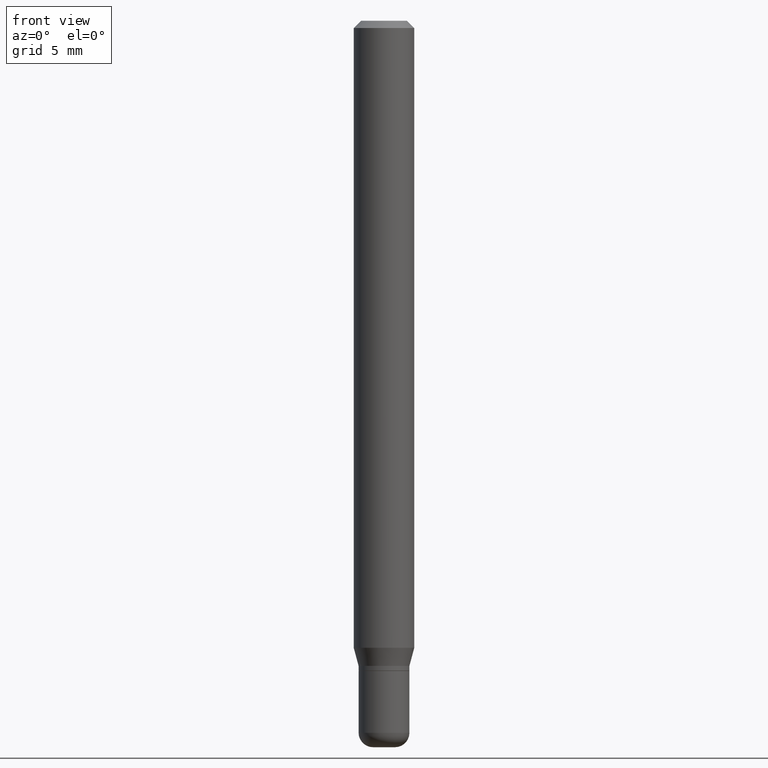
[diagram: clean part render]
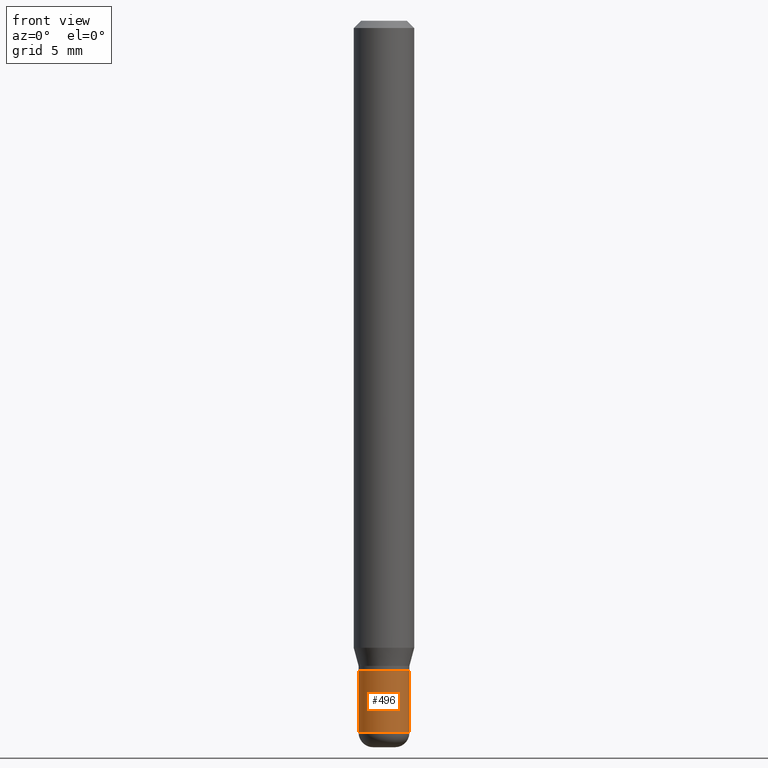
[diagram: same view with one face highlighted and labeled with its STEP entity id]
A machine part, front view. The second image highlights one B-rep face of the part: STEP entity #496.
In plain terms, the highlighted cylindrical surface (edge-blend (fillet) strip) has radius 1.3335 mm, axis along (-0, 0, 1).
Its self-contained STEP definition (entity closure, byte-faithful):
#16 = ORIENTED_EDGE ( 'NONE', *, *, #368, .T. ) ;
#35 = CARTESIAN_POINT ( 'NONE',  ( -0.05249999999999999806, -4.536860696474120707E-15, -1.342500000000000249 ) ) ;
#37 = CARTESIAN_POINT ( 'NONE',  ( -0.05250000000000009520, -4.536860696474119918E-15, -1.470000000000000195 ) ) ;
#48 = DIRECTION ( 'NONE',  ( -2.445468806185136877E-29, 3.491481338843145188E-15, 1.000000000000000000 ) ) ;
#58 = FACE_OUTER_BOUND ( 'NONE', #421, .T. ) ;
#61 = EDGE_CURVE ( 'NONE', #345, #476, #387, .T. ) ;
#70 = DIRECTION ( 'NONE',  ( -2.445468806185136877E-29, 3.491481338843145188E-15, 1.000000000000000000 ) ) ;
#90 = VERTEX_POINT ( 'NONE', #96 ) ;
#93 = VECTOR ( 'NONE', #70, 39.37007874015748143 ) ;
#96 = CARTESIAN_POINT ( 'NONE',  ( 0.05250000000000010908, -5.499083108677954756E-15, -1.470000000000000195 ) ) ;
#98 = ORIENTED_EDGE ( 'NONE', *, *, #269, .F. ) ;
#107 = AXIS2_PLACEMENT_3D ( 'NONE', #434, #184, #400 ) ;
#110 = CARTESIAN_POINT ( 'NONE',  ( 0.05250000000000005357, -3.666055405785293573E-16, 2.559992807292869164E-30 ) ) ;
#119 = DIRECTION ( 'NONE',  ( -2.445468806185136597E-29, 3.491481338843145583E-15, 1.000000000000000000 ) ) ;
#137 = ORIENTED_EDGE ( 'NONE', *, *, #61, .F. ) ;
#164 = LINE ( 'NONE', #110, #485 ) ;
#166 = AXIS2_PLACEMENT_3D ( 'NONE', #482, #119, #405 ) ;
#176 = DIRECTION ( 'NONE',  ( 1.000000000000000000, -6.982962677686266711E-15, 4.876176775795936353E-29 ) ) ;
#184 = DIRECTION ( 'NONE',  ( -2.445468806185136597E-29, 3.491481338843145583E-15, 1.000000000000000000 ) ) ;
#224 = VERTEX_POINT ( 'NONE', #37 ) ;
#228 = DIRECTION ( 'NONE',  ( -2.445468806185136597E-29, 3.491481338843145583E-15, 1.000000000000000000 ) ) ;
#268 = CIRCLE ( 'NONE', #107, 0.05250000000000010908 ) ;
#269 = EDGE_CURVE ( 'NONE', #224, #345, #314, .T. ) ;
#275 = ORIENTED_EDGE ( 'NONE', *, *, #332, .T. ) ;
#302 = CARTESIAN_POINT ( 'NONE',  ( 0.000000000000000000, 0.000000000000000000, 0.000000000000000000 ) ) ;
#314 = LINE ( 'NONE', #470, #93 ) ;
#332 = EDGE_CURVE ( 'NONE', #224, #90, #268, .T. ) ;
#338 = CARTESIAN_POINT ( 'NONE',  ( 0.05249999999999999806, -5.053919237975452413E-15, -1.342500000000000249 ) ) ;
#345 = VERTEX_POINT ( 'NONE', #35 ) ;
#351 = AXIS2_PLACEMENT_3D ( 'NONE', #302, #228, #176 ) ;
#368 = EDGE_CURVE ( 'NONE', #90, #476, #164, .T. ) ;
#387 = CIRCLE ( 'NONE', #166, 0.05249999999999999806 ) ;
#400 = DIRECTION ( 'NONE',  ( 1.000000000000000000, -6.982962677686272233E-15, 0.000000000000000000 ) ) ;
#405 = DIRECTION ( 'NONE',  ( 1.000000000000000000, -6.982962677686268288E-15, 0.000000000000000000 ) ) ;
#421 = EDGE_LOOP ( 'NONE', ( #98, #275, #16, #137 ) ) ;
#434 = CARTESIAN_POINT ( 'NONE',  ( 3.594839145092150820E-29, -5.132477568099424807E-15, -1.470000000000000195 ) ) ;
#470 = CARTESIAN_POINT ( 'NONE',  ( -0.05250000000000005357, 3.730349362740529782E-16, -2.582440922383828464E-30 ) ) ;
#476 = VERTEX_POINT ( 'NONE', #338 ) ;
#482 = CARTESIAN_POINT ( 'NONE',  ( 3.283041872303546419E-29, -4.687313697396923253E-15, -1.342500000000000249 ) ) ;
#485 = VECTOR ( 'NONE', #48, 39.37007874015748143 ) ;
#496 = ADVANCED_FACE ( 'NONE', ( #58 ), #501, .T. ) ;
#501 = CYLINDRICAL_SURFACE ( 'NONE', #351, 0.05250000000000005357 ) ;